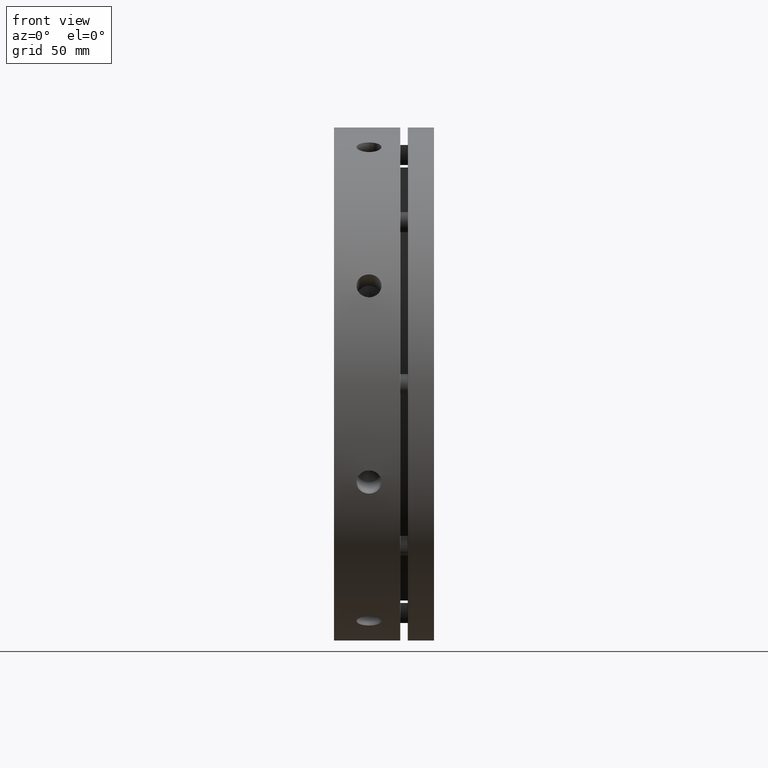
[diagram: clean part render]
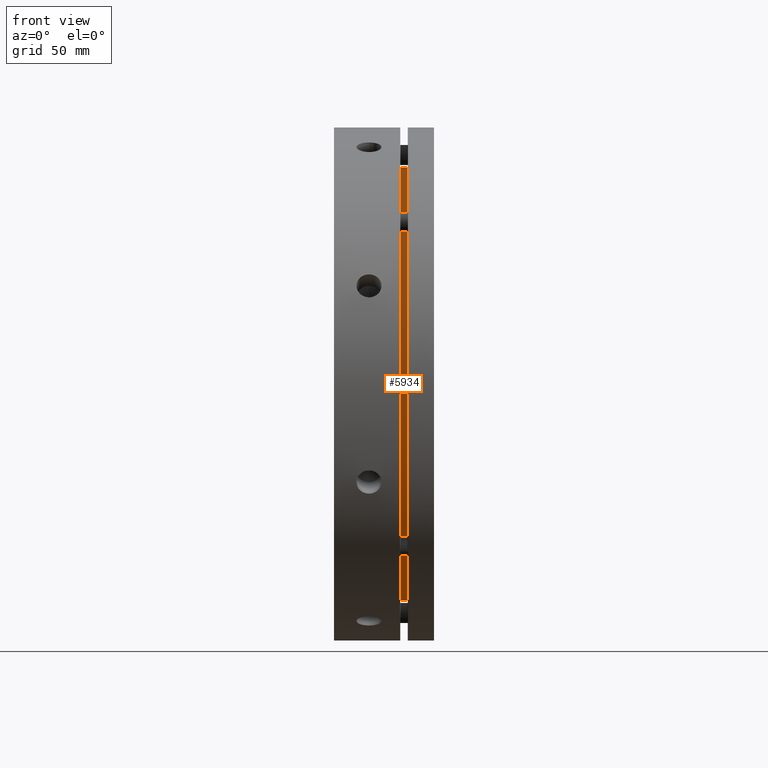
[diagram: same view with one face highlighted and labeled with its STEP entity id]
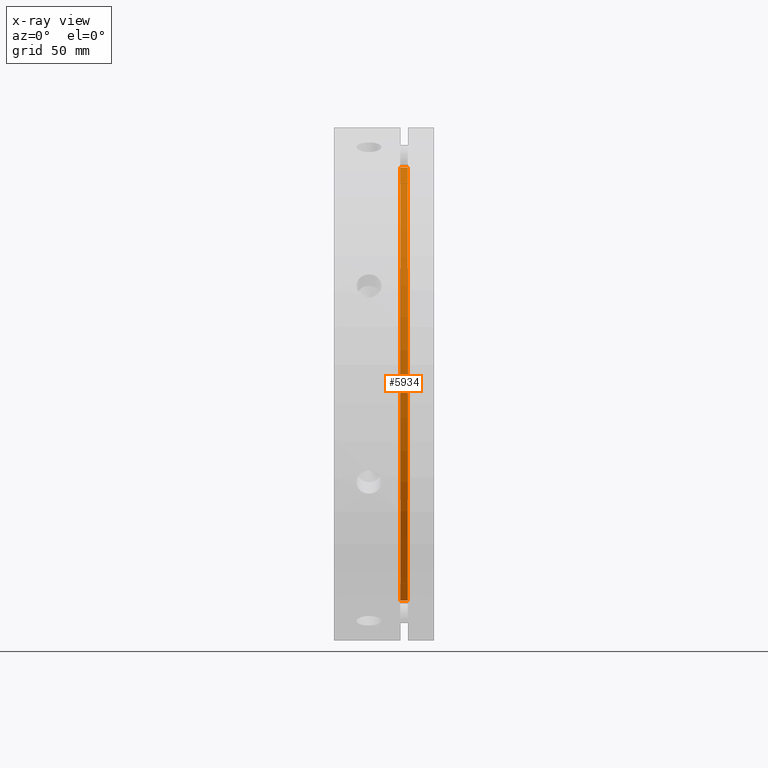
[diagram: x-ray of the same camera — body ghosted, the highlighted face saturated]
A machine part, front view. The second image highlights one B-rep face of the part: STEP entity #5934.
The next image is the same camera in x-ray: the body ghosted, the highlighted face saturated — about 0% of this face is hidden behind the body in this view.
In plain terms, the highlighted cylindrical surface (partial cylindrical patch) has radius 86.5 mm, axis along (-1, 0, 0).
Its self-contained STEP definition (entity closure, byte-faithful):
#11 = AXIS2_PLACEMENT_3D ( 'NONE', #4146, #4147, #4148 ) ;
#105 = AXIS2_PLACEMENT_3D ( 'NONE', #350, #348, #346 ) ;
#346 = DIRECTION ( 'NONE',  ( 0.0000000000000000000, 0.0000000000000000000, 1.000000000000000000 ) ) ;
#348 = DIRECTION ( 'NONE',  ( -1.000000000000000000, 0.0000000000000000000, 0.0000000000000000000 ) ) ;
#350 = CARTESIAN_POINT ( 'NONE',  ( 27.99999999999997500, 0.0000000000000000000, 0.0000000000000000000 ) ) ;
#900 = VERTEX_POINT ( 'NONE', #1481 ) ;
#908 = VERTEX_POINT ( 'NONE', #1489 ) ;
#911 = VERTEX_POINT ( 'NONE', #1492 ) ;
#912 = VERTEX_POINT ( 'NONE', #1493 ) ;
#1229 = EDGE_LOOP ( 'NONE', ( #2930, #2931, #2932, #2933 ) ) ;
#1481 = CARTESIAN_POINT ( 'NONE',  ( 29.49999999999997500, 1.059319481262460600E-014, -86.50000000000001400 ) ) ;
#1489 = CARTESIAN_POINT ( 'NONE',  ( 29.49999999999997500, 0.0000000000000000000, 86.50000000000001400 ) ) ;
#1492 = CARTESIAN_POINT ( 'NONE',  ( 26.49999999999997900, 1.059319481262460600E-014, -86.50000000000001400 ) ) ;
#1493 = CARTESIAN_POINT ( 'NONE',  ( 26.49999999999997900, 0.0000000000000000000, 86.50000000000001400 ) ) ;
#1697 = DIRECTION ( 'NONE',  ( -1.000000000000000000, 0.0000000000000000000, 0.0000000000000000000 ) ) ;
#1698 = CARTESIAN_POINT ( 'NONE',  ( 27.99999999999997500, 0.0000000000000000000, 86.50000000000001400 ) ) ;
#1699 = DIRECTION ( 'NONE',  ( -1.000000000000000000, 0.0000000000000000000, 0.0000000000000000000 ) ) ;
#1700 = CARTESIAN_POINT ( 'NONE',  ( 27.99999999999997500, 1.059319481262460600E-014, -86.50000000000001400 ) ) ;
#2285 = AXIS2_PLACEMENT_3D ( 'NONE', #4092, #4093, #4094 ) ;
#2448 = EDGE_CURVE ( 'NONE', #900, #911, #3176, .T. ) ;
#2450 = EDGE_CURVE ( 'NONE', #908, #912, #3181, .T. ) ;
#2930 = ORIENTED_EDGE ( 'NONE', *, *, #2448, .F. ) ;
#2931 = ORIENTED_EDGE ( 'NONE', *, *, #5676, .T. ) ;
#2932 = ORIENTED_EDGE ( 'NONE', *, *, #2450, .T. ) ;
#2933 = ORIENTED_EDGE ( 'NONE', *, *, #5694, .T. ) ;
#3176 = LINE ( 'NONE', #1700, #3180 ) ;
#3180 = VECTOR ( 'NONE', #1697, 1000.000000000000000 ) ;
#3181 = LINE ( 'NONE', #1698, #3183 ) ;
#3183 = VECTOR ( 'NONE', #1699, 1000.000000000000000 ) ;
#3593 = CIRCLE ( 'NONE', #2285, 86.50000000000001400 ) ;
#3611 = CIRCLE ( 'NONE', #11, 86.50000000000001400 ) ;
#4092 = CARTESIAN_POINT ( 'NONE',  ( 29.49999999999997500, 0.0000000000000000000, 0.0000000000000000000 ) ) ;
#4093 = DIRECTION ( 'NONE',  ( -1.000000000000000000, 0.0000000000000000000, 0.0000000000000000000 ) ) ;
#4094 = DIRECTION ( 'NONE',  ( 0.0000000000000000000, 0.0000000000000000000, 1.000000000000000000 ) ) ;
#4146 = CARTESIAN_POINT ( 'NONE',  ( 26.49999999999997900, 0.0000000000000000000, 0.0000000000000000000 ) ) ;
#4147 = DIRECTION ( 'NONE',  ( 1.000000000000000000, -0.0000000000000000000, -0.0000000000000000000 ) ) ;
#4148 = DIRECTION ( 'NONE',  ( 0.0000000000000000000, 0.0000000000000000000, 1.000000000000000000 ) ) ;
#4991 = FACE_OUTER_BOUND ( 'NONE', #1229, .T. ) ;
#5000 = CYLINDRICAL_SURFACE ( 'NONE', #105, 86.50000000000001400 ) ;
#5676 = EDGE_CURVE ( 'NONE', #900, #908, #3593, .T. ) ;
#5694 = EDGE_CURVE ( 'NONE', #912, #911, #3611, .T. ) ;
#5934 = ADVANCED_FACE ( 'NONE', ( #4991 ), #5000, .T. ) ;